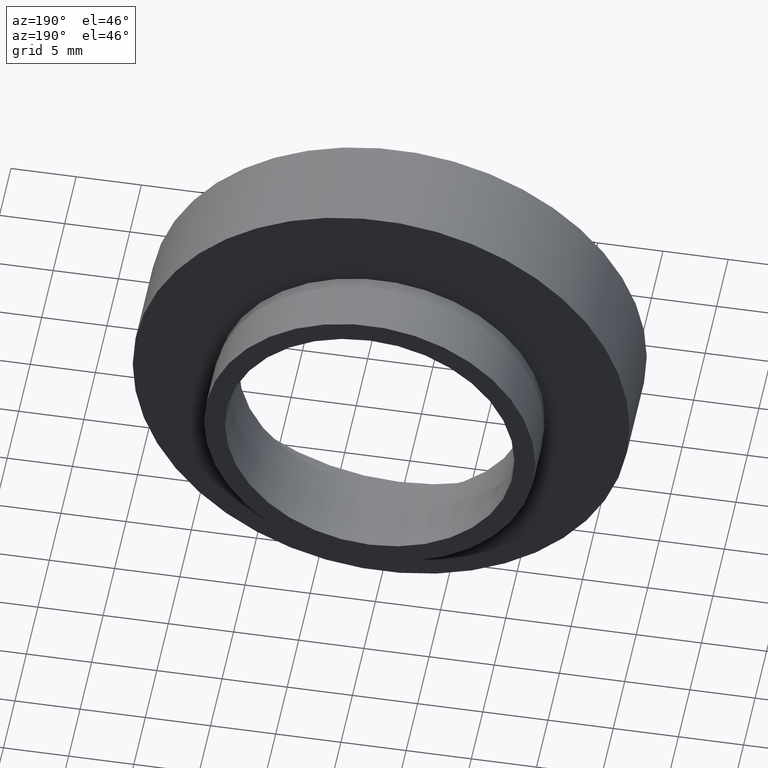
[diagram: clean part render]
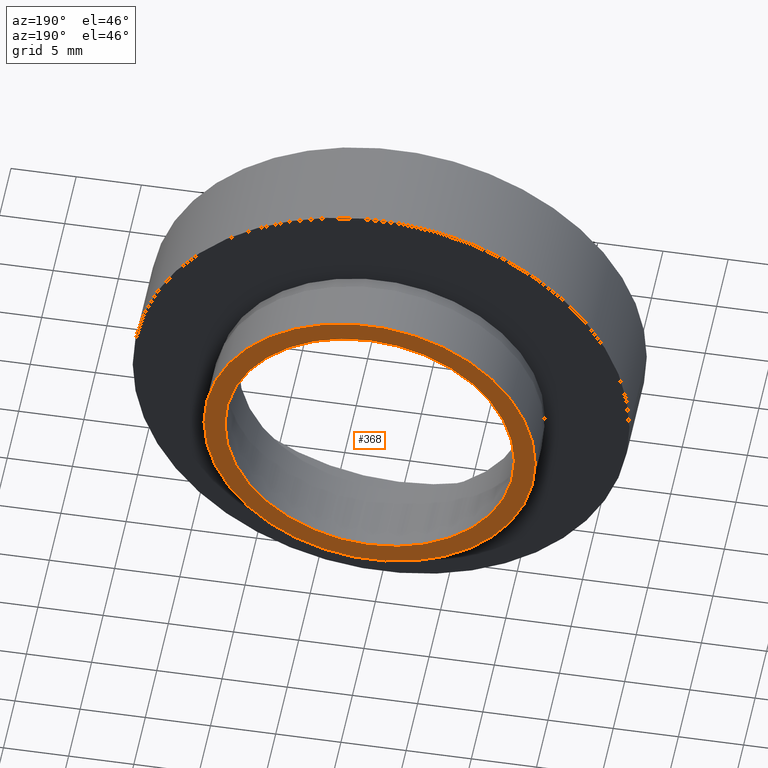
[diagram: same view with one face highlighted and labeled with its STEP entity id]
A machine part, auxiliary view. The second image highlights one B-rep face of the part: STEP entity #368.
In plain terms, the highlighted planar face has unit normal (0, -1, 0).
Its self-contained STEP definition (entity closure, byte-faithful):
#33 = DIRECTION ( 'NONE',  ( -1.224646799147351000E-016, 1.000000000000000000, -0.0000000000000000000 ) ) ;
#44 = EDGE_CURVE ( 'NONE', #585, #116, #234, .T. ) ;
#51 = DIRECTION ( 'NONE',  ( -1.000000000000000000, -1.365923996832131600E-016, 0.0000000000000000000 ) ) ;
#55 = DIRECTION ( 'NONE',  ( 1.000000000000000000, 1.224646799147351000E-016, 0.0000000000000000000 ) ) ;
#63 = FACE_OUTER_BOUND ( 'NONE', #343, .T. ) ;
#70 = FACE_BOUND ( 'NONE', #610, .T. ) ;
#84 = CIRCLE ( 'NONE', #477, 11.10000000000000100 ) ;
#86 = DIRECTION ( 'NONE',  ( -1.224646799147351000E-016, 1.000000000000000000, -0.0000000000000000000 ) ) ;
#109 = CARTESIAN_POINT ( 'NONE',  ( 5.371323195044474300E-016, 12.49999999999999600, 0.0000000000000000000 ) ) ;
#116 = VERTEX_POINT ( 'NONE', #510 ) ;
#123 = DIRECTION ( 'NONE',  ( -1.224646799147351000E-016, 1.000000000000000000, -0.0000000000000000000 ) ) ;
#137 = DIRECTION ( 'NONE',  ( -1.000000000000000000, -1.562813942321447500E-016, 0.0000000000000000000 ) ) ;
#146 = DIRECTION ( 'NONE',  ( -1.224646799147351000E-016, 1.000000000000000000, -0.0000000000000000000 ) ) ;
#183 = ORIENTED_EDGE ( 'NONE', *, *, #529, .F. ) ;
#194 = ORIENTED_EDGE ( 'NONE', *, *, #476, .T. ) ;
#224 = AXIS2_PLACEMENT_3D ( 'NONE', #266, #123, #137 ) ;
#225 = VERTEX_POINT ( 'NONE', #367 ) ;
#234 = CIRCLE ( 'NONE', #224, 11.10000000000000100 ) ;
#252 = AXIS2_PLACEMENT_3D ( 'NONE', #565, #33, #611 ) ;
#266 = CARTESIAN_POINT ( 'NONE',  ( 5.371323195044472300E-016, 12.49999999999999800, 0.0000000000000000000 ) ) ;
#302 = CARTESIAN_POINT ( 'NONE',  ( 11.10000000000000100, 12.50000000000000000, 1.359357947053562400E-015 ) ) ;
#304 = AXIS2_PLACEMENT_3D ( 'NONE', #456, #334, #55 ) ;
#326 = CIRCLE ( 'NONE', #378, 12.69999999999999900 ) ;
#334 = DIRECTION ( 'NONE',  ( 1.224646799147351000E-016, -1.000000000000000000, 0.0000000000000000000 ) ) ;
#343 = EDGE_LOOP ( 'NONE', ( #194, #592 ) ) ;
#367 = CARTESIAN_POINT ( 'NONE',  ( -12.69999999999999900, 12.49999999999999500, 0.0000000000000000000 ) ) ;
#368 = ADVANCED_FACE ( 'NONE', ( #70, #63 ), #393, .F. ) ;
#378 = AXIS2_PLACEMENT_3D ( 'NONE', #109, #86, #51 ) ;
#393 = PLANE ( 'NONE',  #304 ) ;
#426 = CARTESIAN_POINT ( 'NONE',  ( 12.69999999999999900, 12.49999999999999800, 1.555301434917138400E-015 ) ) ;
#438 = CARTESIAN_POINT ( 'NONE',  ( 5.371323195044472300E-016, 12.49999999999999800, 0.0000000000000000000 ) ) ;
#445 = VERTEX_POINT ( 'NONE', #426 ) ;
#448 = ORIENTED_EDGE ( 'NONE', *, *, #44, .F. ) ;
#453 = EDGE_CURVE ( 'NONE', #445, #225, #462, .T. ) ;
#456 = CARTESIAN_POINT ( 'NONE',  ( 11.10000000000000100, 12.50000000000000000, 0.0000000000000000000 ) ) ;
#462 = CIRCLE ( 'NONE', #252, 12.69999999999999900 ) ;
#476 = EDGE_CURVE ( 'NONE', #225, #445, #326, .T. ) ;
#477 = AXIS2_PLACEMENT_3D ( 'NONE', #438, #146, #531 ) ;
#510 = CARTESIAN_POINT ( 'NONE',  ( -11.10000000000000100, 12.49999999999999600, 0.0000000000000000000 ) ) ;
#529 = EDGE_CURVE ( 'NONE', #116, #585, #84, .T. ) ;
#531 = DIRECTION ( 'NONE',  ( -1.000000000000000000, -1.562813942321447500E-016, 0.0000000000000000000 ) ) ;
#565 = CARTESIAN_POINT ( 'NONE',  ( 5.371323195044474300E-016, 12.49999999999999600, 0.0000000000000000000 ) ) ;
#585 = VERTEX_POINT ( 'NONE', #302 ) ;
#592 = ORIENTED_EDGE ( 'NONE', *, *, #453, .T. ) ;
#610 = EDGE_LOOP ( 'NONE', ( #183, #448 ) ) ;
#611 = DIRECTION ( 'NONE',  ( -1.000000000000000000, -1.365923996832131600E-016, 0.0000000000000000000 ) ) ;